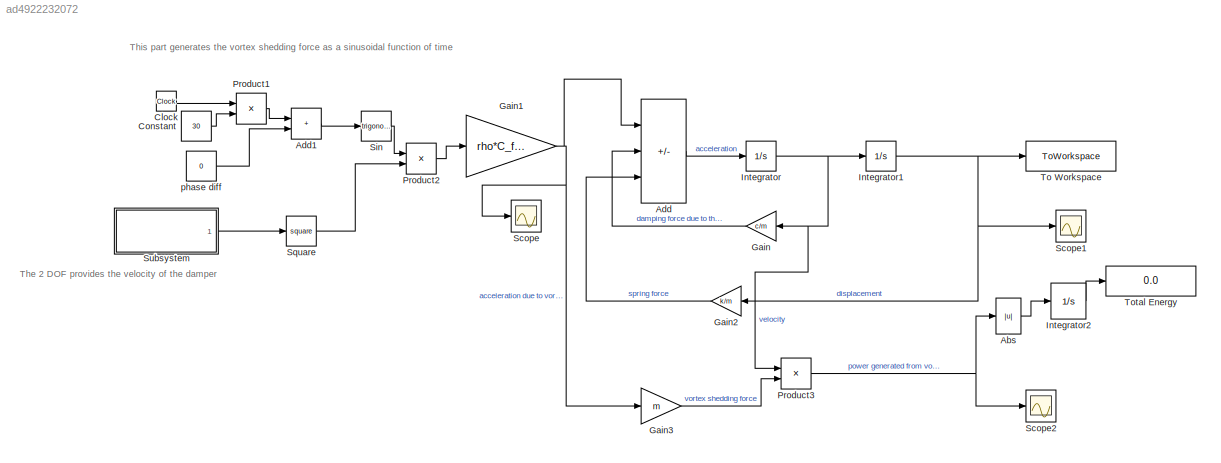
MODEL slx_ad4922232072
KIND model
CONFIG AbsTol = auto
CONFIG EnableMultiTasking = off
CONFIG FixedStep = auto
CONFIG MaxStep = auto
CONFIG MinStep = auto
CONFIG RelTol = 1e-3
CONFIG SampleTimeConstraint = Unconstrained
CONFIG Solver = VariableStepAuto
CONFIG SolverName = VariableStepAuto
CONFIG StartTime = 0.0
CONFIG StopTime = 120.0
BLOCK [Abs] Abs
  SaturateOnIntegerOverflow = off
BLOCK [Sum] Add
  IconShape = rectangular
  Inputs = +--
  Ports = [3, 1]
BLOCK [Sum] Add1
  IconShape = rectangular
  Ports = [2, 1]
BLOCK [Clock] Clock
BLOCK [Constant] Constant
  Value = 30
BLOCK [Gain] Gain
  Gain = c/m
BLOCK [Gain] Gain1
  Gain = rho*C_f/(2*m)
BLOCK [Gain] Gain2
  Gain = k/m
BLOCK [Gain] Gain3
  Gain = m
BLOCK [Integrator] Integrator
  Ports = [1, 1]
BLOCK [Integrator] Integrator1
  Ports = [1, 1]
BLOCK [Integrator] Integrator2
  Ports = [1, 1]
BLOCK [Product] Product1
  Ports = [2, 1]
BLOCK [Product] Product2
  Ports = [2, 1]
BLOCK [Product] Product3
  Ports = [2, 1]
BLOCK [Scope] Scope
  Floating = off
  NumInputPorts = 1
  Ports = [1]
  ScopeSpecificationString = Simulink.scopes.TimeScopeBlockCfg('CurrentConfiguration', extmgr.ConfigurationSet(extmgr.Configuration('Core','General UI',true),extmgr.Configuration('Core','Source UI',true),extmgr.Configuration('Sources','WiredSimulink',true),extmgr.Configuration('Visuals','Time Domain',true,'SerializedDisplays',{struct('MinYLimReal','-1.88482','MaxYLimReal','1.88482','YLabelReal','','MinYLimMag','0.00000','MaxY...<+1354ch>
BLOCK [Scope] Scope1
  Floating = off
  NumInputPorts = 1
  Ports = [1]
  ScopeSpecificationString = Simulink.scopes.TimeScopeBlockCfg('CurrentConfiguration', extmgr.ConfigurationSet(extmgr.Configuration('Core','General UI',true),extmgr.Configuration('Core','Source UI',true),extmgr.Configuration('Sources','WiredSimulink',true,'DataLoggingVariableName','ScopeData1'),extmgr.Configuration('Visuals','Time Domain',true,'SerializedDisplays',{struct('MinYLimReal','-0.01179','MaxYLimReal','0.0119','YLabe...<+1396ch>
BLOCK [Scope] Scope2
  Floating = off
  NumInputPorts = 1
  Ports = [1]
  ScopeSpecificationString = Simulink.scopes.TimeScopeBlockCfg('CurrentConfiguration', extmgr.ConfigurationSet(extmgr.Configuration('Core','General UI',true),extmgr.Configuration('Core','Source UI',true),extmgr.Configuration('Sources','WiredSimulink',true,'DataLoggingVariableName','ScopeData1'),extmgr.Configuration('Visuals','Time Domain',true,'SerializedDisplays',{struct('MinYLimReal','-0.68754','MaxYLimReal','0.69201','YLab...<+1415ch>
BLOCK [Trigonometry] Sin
  Ports = [1, 1]
BLOCK [Math] Square
  Operator = square
  Ports = [1, 1]
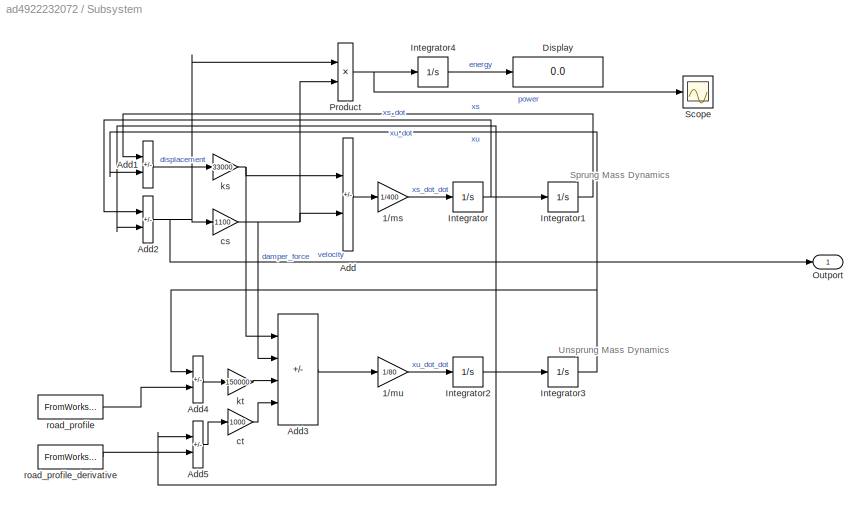
BLOCK [SubSystem] Subsystem
  Ports = [0, 1]
  RequestExecContextInheritance = off
BLOCK [Gain] Subsystem/1//ms
  Gain = 1/400
BLOCK [Gain] Subsystem/1//mu
  Gain = 1/80
BLOCK [Sum] Subsystem/Add
  IconShape = rectangular
  Inputs = --
  Ports = [2, 1]
BLOCK [Sum] Subsystem/Add1
  IconShape = rectangular
  Inputs = +-
  Ports = [2, 1]
BLOCK [Sum] Subsystem/Add2
  IconShape = rectangular
  Inputs = +-
  Ports = [2, 1]
BLOCK [Sum] Subsystem/Add3
  IconShape = rectangular
  Inputs = ++--
  Ports = [4, 1]
BLOCK [Sum] Subsystem/Add4
  IconShape = rectangular
  Inputs = +-
  Ports = [2, 1]
BLOCK [Sum] Subsystem/Add5
  IconShape = rectangular
  Inputs = +-
  Ports = [2, 1]
BLOCK [Display] Subsystem/Display
  Decimation = 2
  Ports = [1]
BLOCK [Integrator] Subsystem/Integrator
  Ports = [1, 1]
BLOCK [Integrator] Subsystem/Integrator1
  Ports = [1, 1]
BLOCK [Integrator] Subsystem/Integrator2
  Ports = [1, 1]
BLOCK [Integrator] Subsystem/Integrator3
  Ports = [1, 1]
BLOCK [Integrator] Subsystem/Integrator4
  Ports = [1, 1]
BLOCK [Outport] Subsystem/Outport
BLOCK [Product] Subsystem/Product
  Ports = [2, 1]
BLOCK [Scope] Subsystem/Scope
  Floating = off
  NumInputPorts = 1
  Ports = [1]
  ScopeSpecificationString = Simulink.scopes.TimeScopeBlockCfg('CurrentConfiguration', extmgr.ConfigurationSet(extmgr.Configuration('Core','General UI',true),extmgr.Configuration('Core','Source UI',true),extmgr.Configuration('Sources','WiredSimulink',true),extmgr.Configuration('Visuals','Time Domain',true,'SerializedDisplays',{struct('MinYLimReal','2.00446','MaxYLimReal','189.7341','YLabelReal','','MinYLimMag','2.00446','MaxY...<+1370ch>
BLOCK [Gain] Subsystem/cs
  Gain = 1100
BLOCK [Gain] Subsystem/ct
  Gain = 1000
BLOCK [Gain] Subsystem/ks
  Gain = 33000
  NameLocation = top
BLOCK [Gain] Subsystem/kt
  Gain = 150000
  NameLocation = top
BLOCK [FromWorkspace] Subsystem/road_profile
  NameLocation = top
  VariableName = rp
BLOCK [FromWorkspace] Subsystem/road_profile_derivative
  VariableName = rp_dot
BLOCK [ToWorkspace] To Workspace
  FixptAsFi = on
  MaxDataPoints = inf
  Ports = [1]
  SampleTime = -1
  SaveFormat = Timeseries
  VariableName = Displacement
BLOCK [Display] Total Energy
  Decimation = 1
  Ports = [1]
BLOCK [Constant] phase diff
  Value = 0
ANNOTATION (root): The 2 DOF provides the velocity of the damper
ANNOTATION (root): This part generates the vortex shedding force as a sinusoidal function of time
ANNOTATION Subsystem: Sprung Mass Dynamics
ANNOTATION Subsystem: Unsprung Mass Dynamics
LINE Abs:1 -> Integrator2:1
LINE Add1:1 -> Sin:1
LINE Add:1 -> Integrator:1
LINE Clock:1 -> Product1:1
LINE Constant:1 -> Product1:2
NET Gain1:1 -> Add:1, Gain3:1, Scope:1
LINE Gain2:1 -> Add:3
LINE Gain3:1 -> Product3:2
LINE Gain:1 -> Add:2
NET Integrator1:1 -> Gain2:1, Scope1:1, To Workspace:1
LINE Integrator2:1 -> Total Energy:1
NET Integrator:1 -> Gain:1, Integrator1:1, Product3:1
LINE Product1:1 -> Add1:1
LINE Product2:1 -> Gain1:1
NET Product3:1 -> Abs:1, Scope2:1
LINE Sin:1 -> Product2:1
LINE Square:1 -> Product2:2
LINE Subsystem/1//ms:1 -> Subsystem/Integrator:1
LINE Subsystem/1//mu:1 -> Subsystem/Integrator2:1
LINE Subsystem/Add1:1 -> Subsystem/ks:1
NET Subsystem/Add2:1 -> Subsystem/Outport:1, Subsystem/Product:1, Subsystem/cs:1
LINE Subsystem/Add3:1 -> Subsystem/1//mu:1
LINE Subsystem/Add4:1 -> Subsystem/kt:1
LINE Subsystem/Add5:1 -> Subsystem/ct:1
LINE Subsystem/Add:1 -> Subsystem/1//ms:1
LINE Subsystem/Integrator1:1 -> Subsystem/Add1:1
NET Subsystem/Integrator2:1 -> Subsystem/Add2:2, Subsystem/Add5:1, Subsystem/Integrator3:1
NET Subsystem/Integrator3:1 -> Subsystem/Add1:2, Subsystem/Add4:1
LINE Subsystem/Integrator4:1 -> Subsystem/Display:1
NET Subsystem/Integrator:1 -> Subsystem/Add2:1, Subsystem/Integrator1:1
NET Subsystem/Product:1 -> Subsystem/Integrator4:1, Subsystem/Scope:1
NET Subsystem/cs:1 -> Subsystem/Add3:2, Subsystem/Add:2, Subsystem/Product:2
LINE Subsystem/ct:1 -> Subsystem/Add3:4
NET Subsystem/ks:1 -> Subsystem/Add3:1, Subsystem/Add:1
LINE Subsystem/kt:1 -> Subsystem/Add3:3
LINE Subsystem/road_profile:1 -> Subsystem/Add4:2
LINE Subsystem/road_profile_derivative:1 -> Subsystem/Add5:2
LINE Subsystem:1 -> Square:1
LINE phase diff:1 -> Add1:2
note: NET lines group one-source signal fan-out (src -> all destinations, sorted); 1:1 wires keep LINE
